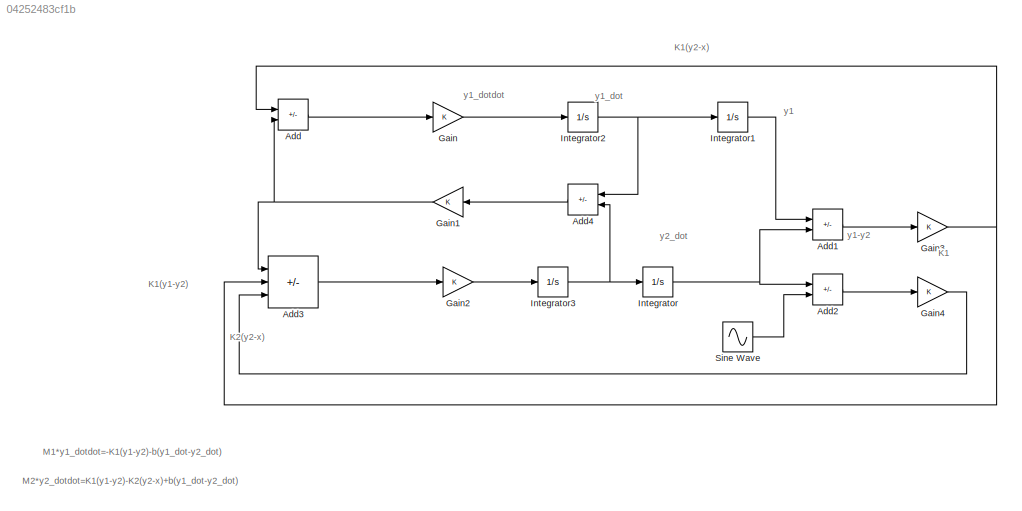
MODEL slx_04252483cf1b
KIND model
CONFIG AbsTol = auto
CONFIG EnableMultiTasking = off
CONFIG FixedStep = auto
CONFIG MaxStep = auto
CONFIG MinStep = auto
CONFIG RelTol = 1e-3
CONFIG SampleTimeConstraint = Unconstrained
CONFIG SolverName = VariableStepAuto
CONFIG StartTime = 0.0
CONFIG StopTime = 10.0
WORKSPACE source: mxarray member
WORKSPACE K1: Simulink.Parameter (value not decoded)
WORKSPACE K12: Simulink.Parameter (value not decoded)
WORKSPACE M1: Simulink.Parameter (value not decoded)
WORKSPACE M2: Simulink.Parameter (value not decoded)
WORKSPACE b: Simulink.Parameter (value not decoded)
BLOCK [Sum] Add
  IconShape = rectangular
  Inputs = --
  Ports = [2, 1]
BLOCK [Sum] Add1
  IconShape = rectangular
  Inputs = +-
  Ports = [2, 1]
BLOCK [Sum] Add2
  IconShape = rectangular
  Inputs = +-
  Ports = [2, 1]
BLOCK [Sum] Add3
  IconShape = rectangular
  Inputs = ++-
  Ports = [3, 1]
BLOCK [Sum] Add4
  IconShape = rectangular
  Inputs = +-
  NameLocation = top
  Ports = [2, 1]
BLOCK [Gain] Gain
BLOCK [Gain] Gain1
  NameLocation = top
BLOCK [Gain] Gain2
BLOCK [Gain] Gain3
BLOCK [Gain] Gain4
BLOCK [Integrator] Integrator
  Ports = [1, 1]
BLOCK [Integrator] Integrator1
  Ports = [1, 1]
BLOCK [Integrator] Integrator2
  Ports = [1, 1]
BLOCK [Integrator] Integrator3
  Ports = [1, 1]
BLOCK [Sin] Sine Wave
  Amplitude = 2*pi*100
  Ports = [0, 1]
  SampleTime = 0
ANNOTATION (root): M1*y1_dotdot=-K1(y1-y2)-b(y1_dot- y2_dot )
ANNOTATION (root): M2*y2_dotdot=K1(y1-y2)-K2(y2-x)+b(y1_dot-y2_dot)
ANNOTATION (root): K1
ANNOTATION (root): K1(y1-y2)
ANNOTATION (root): K1(y2-x)
ANNOTATION (root): K2(y2-x)
ANNOTATION (root): y1
ANNOTATION (root): y1-y2
ANNOTATION (root): y1_dot
ANNOTATION (root): y1_dotdot
ANNOTATION (root): y2_dot
LINE Add1:1 -> Gain3:1
LINE Add2:1 -> Gain4:1
LINE Add3:1 -> Gain2:1
LINE Add4:1 -> Gain1:1
LINE Add:1 -> Gain:1
NET Gain1:1 -> Add3:1, Add:2
LINE Gain2:1 -> Integrator3:1
NET Gain3:1 -> Add3:2, Add:1
LINE Gain4:1 -> Add3:3
LINE Gain:1 -> Integrator2:1
LINE Integrator1:1 -> Add1:1
NET Integrator2:1 -> Add4:1, Integrator1:1
NET Integrator3:1 -> Add4:2, Integrator:1
NET Integrator:1 -> Add1:2, Add2:1
LINE Sine Wave:1 -> Add2:2
note: NET lines group one-source signal fan-out (src -> all destinations, sorted); 1:1 wires keep LINE
